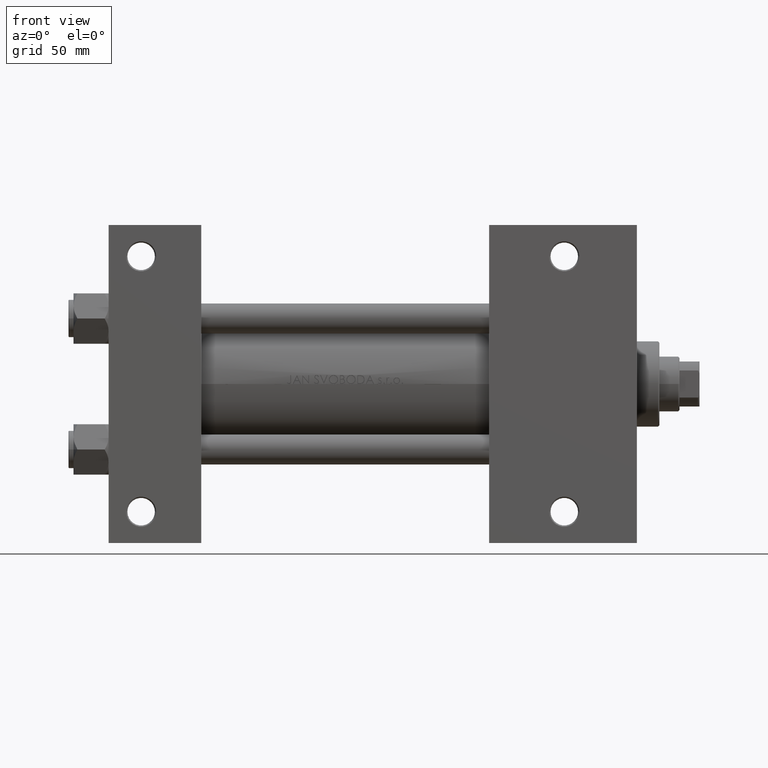
[diagram: clean part render]
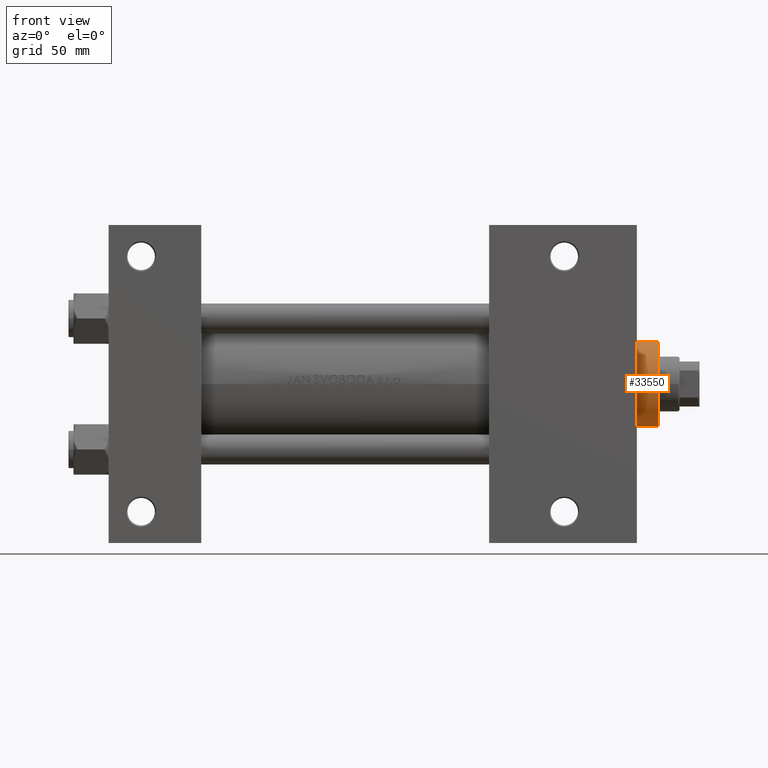
[diagram: same view with one face highlighted and labeled with its STEP entity id]
A machine part, front view. The second image highlights one B-rep face of the part: STEP entity #33550.
In plain terms, the highlighted cylindrical surface (partial cylindrical patch) has radius 17 mm, axis along (-1, -0, 0).
Its self-contained STEP definition (entity closure, byte-faithful):
#1633 = CARTESIAN_POINT ( 'NONE',  ( 0.000000000000000000, 0.000000000000000000, 37.19999999999999574 ) ) ;
#1682 = DIRECTION ( 'NONE',  ( -0.000000000000000000, -0.000000000000000000, -1.000000000000000000 ) ) ;
#2133 = LINE ( 'NONE', #36497, #10428 ) ;
#2628 = DIRECTION ( 'NONE',  ( 1.000000000000000000, 0.000000000000000000, 0.000000000000000000 ) ) ;
#3492 = CYLINDRICAL_SURFACE ( 'NONE', #22341, 17.00000000000000000 ) ;
#6983 = DIRECTION ( 'NONE',  ( -0.000000000000000000, -0.000000000000000000, -1.000000000000000000 ) ) ;
#9979 = ORIENTED_EDGE ( 'NONE', *, *, #14436, .T. ) ;
#10104 = DIRECTION ( 'NONE',  ( 0.000000000000000000, 0.000000000000000000, 1.000000000000000000 ) ) ;
#10428 = VECTOR ( 'NONE', #33005, 1000.000000000000000 ) ;
#12160 = CARTESIAN_POINT ( 'NONE',  ( -17.00000000000000000, 0.000000000000000000, 37.19999999999999574 ) ) ;
#14436 = EDGE_CURVE ( 'NONE', #35468, #47692, #40388, .T. ) ;
#14593 = CARTESIAN_POINT ( 'NONE',  ( 0.000000000000000000, 0.000000000000000000, 28.69999999999999929 ) ) ;
#16449 = ORIENTED_EDGE ( 'NONE', *, *, #27601, .T. ) ;
#18707 = DIRECTION ( 'NONE',  ( -1.000000000000000000, 0.000000000000000000, 0.000000000000000000 ) ) ;
#19656 = LINE ( 'NONE', #32313, #27843 ) ;
#22198 = CARTESIAN_POINT ( 'NONE',  ( 0.000000000000000000, 0.000000000000000000, 37.69999999999999574 ) ) ;
#22341 = AXIS2_PLACEMENT_3D ( 'NONE', #22198, #6983, #18707 ) ;
#22926 = AXIS2_PLACEMENT_3D ( 'NONE', #14593, #10104, #2628 ) ;
#25530 = VERTEX_POINT ( 'NONE', #12160 ) ;
#26414 = FACE_OUTER_BOUND ( 'NONE', #36490, .T. ) ;
#27601 = EDGE_CURVE ( 'NONE', #25530, #35468, #19656, .T. ) ;
#27843 = VECTOR ( 'NONE', #1682, 1000.000000000000000 ) ;
#28532 = DIRECTION ( 'NONE',  ( 1.000000000000000000, 0.000000000000000000, 0.000000000000000000 ) ) ;
#32023 = DIRECTION ( 'NONE',  ( 0.000000000000000000, 0.000000000000000000, -1.000000000000000000 ) ) ;
#32313 = CARTESIAN_POINT ( 'NONE',  ( -17.00000000000000000, 0.000000000000000000, 37.69999999999999574 ) ) ;
#32774 = CARTESIAN_POINT ( 'NONE',  ( 17.00000000000000000, 2.081899558550500280E-15, 28.69999999999999929 ) ) ;
#33005 = DIRECTION ( 'NONE',  ( -0.000000000000000000, -0.000000000000000000, -1.000000000000000000 ) ) ;
#33402 = CARTESIAN_POINT ( 'NONE',  ( -17.00000000000000000, 0.000000000000000000, 28.69999999999999929 ) ) ;
#33550 = ADVANCED_FACE ( 'NONE', ( #26414 ), #3492, .T. ) ;
#34692 = ORIENTED_EDGE ( 'NONE', *, *, #39127, .T. ) ;
#35468 = VERTEX_POINT ( 'NONE', #33402 ) ;
#36490 = EDGE_LOOP ( 'NONE', ( #46918, #34692, #16449, #9979 ) ) ;
#36497 = CARTESIAN_POINT ( 'NONE',  ( 17.00000000000000000, 2.081899558550500280E-15, 37.69999999999999574 ) ) ;
#36772 = EDGE_CURVE ( 'NONE', #47666, #47692, #2133, .T. ) ;
#39127 = EDGE_CURVE ( 'NONE', #47666, #25530, #42374, .T. ) ;
#40388 = CIRCLE ( 'NONE', #22926, 17.00000000000000000 ) ;
#41460 = CARTESIAN_POINT ( 'NONE',  ( 17.00000000000000000, 2.081899558550500280E-15, 37.19999999999999574 ) ) ;
#42374 = CIRCLE ( 'NONE', #43183, 17.00000000000000000 ) ;
#43183 = AXIS2_PLACEMENT_3D ( 'NONE', #1633, #32023, #28532 ) ;
#46918 = ORIENTED_EDGE ( 'NONE', *, *, #36772, .F. ) ;
#47666 = VERTEX_POINT ( 'NONE', #41460 ) ;
#47692 = VERTEX_POINT ( 'NONE', #32774 ) ;